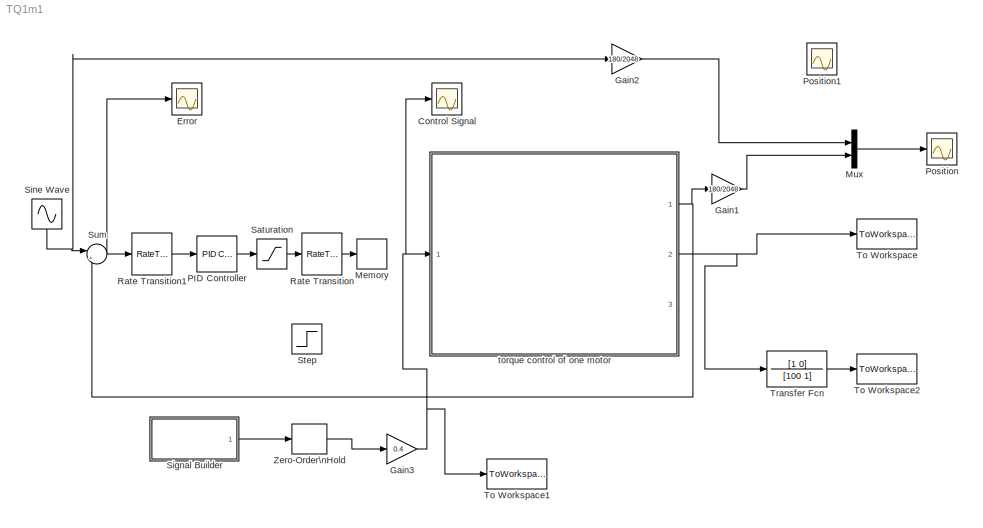
MODEL TQ1m1
KIND model
BLOCK [Scope] Control Signal
  DataFormat = StructureWithTime
  ExtModeUploadOption = log
  Floating = off
  NumInputPorts = 1
  Ports = [1]
  SID = 55
  SampleTime = 0
  SaveName = ScopeData7
  ShowLegends = off
  YMax = 0.4
  YMin = 0.4
  ZoomMode = yonly
BLOCK [Scope] Error
  DataFormat = StructureWithTime
  Floating = off
  NumInputPorts = 1
  Ports = [1]
  SID = 54
  SampleTime = 0
  SaveName = ScopeData6
  ShowLegends = off
  YMax = 2.8617
  YMin = 2.86
  ZoomMode = yonly
BLOCK [Gain] Gain1
  Gain = 180/2048
  OutDataTypeStr = Inherit: Inherit via internal rule
  ParamDataTypeStr = Inherit: Inherit via internal rule
  SID = 81
  SaturateOnIntegerOverflow = off
BLOCK [Gain] Gain2
  Gain = 180/2048
  OutDataTypeStr = Inherit: Inherit via internal rule
  ParamDataTypeStr = Inherit: Inherit via internal rule
  SID = 80
  SaturateOnIntegerOverflow = off
BLOCK [Gain] Gain3
  Gain = 0.4
  OutDataTypeStr = Inherit: Inherit via internal rule
  ParamDataTypeStr = Inherit: Inherit via internal rule
  SID = 93
  SaturateOnIntegerOverflow = off
BLOCK [Memory] Memory
  SID = 104
BLOCK [Mux] Mux
  DisplayOption = bar
  Inputs = 2
  Ports = [2, 1]
  SID = 51
BLOCK [Reference] PID Controller  REF=simulink/Continuous/PID Controller
  AntiWindupMode = none
  Controller = PID
  D = 0.00005
  DOutDataTypeStr = Inherit: Inherit via internal rule
  DOutMax = []
  DOutMin = []
  DParamDataTypeStr = Inherit: Inherit via internal rule
  DParamMax = []
  DParamMin = []
  ExternalReset = none
  FilterContinuousStateAttributes = ''
  FilterMethod = Forward Euler
  FilterOutDataTypeStr = Inherit: Inherit via internal rule
  FilterOutMax = []
  FilterOutMin = []
  FilterRTWStateStorageClass = Auto
  FilterStateMustResolveToSignalObject = off
  Form = Parallel
  I = 0.01
  IOutDataTypeStr = Inherit: Inherit via internal rule
  IOutMax = []
  IOutMin = []
  IParamDataTypeStr = Inherit: Inherit via internal rule
  IParamMax = []
  IParamMin = []
  IgnoreLimit = off
  InitialConditionForFilter = 0
  InitialConditionForIntegrator = 0
  InitialConditionSource = internal
  IntegratorContinuousStateAttributes = ''
  IntegratorMethod = Forward Euler
  IntegratorOutDataTypeStr = Inherit: Inherit via internal rule
  IntegratorOutMax = []
  IntegratorOutMin = []
  IntegratorRTWStateStorageClass = Auto
  IntegratorStateMustResolveToSignalObject = off
  Kb = 1
  KbOutDataTypeStr = Inherit: Inherit via internal rule
  KbOutMax = []
  KbOutMin = []
  KbParamDataTypeStr = Inherit: Inherit via internal rule
  KbParamMax = []
  KbParamMin = []
  Kt = 1
  KtOutDataTypeStr = Inherit: Inherit via internal rule
  KtOutMax = []
  KtOutMin = []
  KtParamDataTypeStr = Inherit: Inherit via internal rule
  KtParamMax = []
  KtParamMin = []
  LimitOutput = off
  LinearizeAsGain = on
  LockScale = off
  LowerSaturationLimit = -inf
  N = 100
  NOutDataTypeStr = Inherit: Inherit via internal rule
  NOutMax = []
  NOutMin = []
  NParamDataTypeStr = Inherit: Inherit via internal rule
  NParamMax = []
  NParamMin = []
  P = 0.002
  POutDataTypeStr = Inherit: Inherit via internal rule
  POutMax = []
  POutMin = []
  PParamDataTypeStr = Inherit: Inherit via internal rule
  PParamMax = []
  PParamMin = []
  Ports = [1, 1]
  RndMeth = Floor
  SID = 105
  SampleTime = 0.01
  SaturateOnIntegerOverflow = off
  SaturationOutDataTypeStr = Inherit: Same as input
  SaturationOutMax = []
  SaturationOutMin = []
  SourceBlock = simulink/Continuous/PID Controller
  SourceType = PID 1dof
  SumAccumDataTypeStr = Inherit: Inherit via internal rule
  SumDAccumDataTypeStr = Inherit: Inherit via internal rule
  SumDOutDataTypeStr = Inherit: Inherit via internal rule
  SumDOutMax = []
  SumDOutMin = []
  SumI1AccumDataTypeStr = Inherit: Inherit via internal rule
  SumI1OutDataTypeStr = Inherit: Inherit via internal rule
  SumI1OutMax = []
  SumI1OutMin = []
  SumI2AccumDataTypeStr = Inherit: Inherit via internal rule
  SumI2OutDataTypeStr = Inherit: Inherit via internal rule
  SumI2OutMax = []
  SumI2OutMin = []
  SumI3AccumDataTypeStr = Inherit: Inherit via internal rule
  SumI3OutDataTypeStr = Inherit: Inherit via internal rule
  SumI3OutMax = []
  SumI3OutMin = []
  SumOutDataTypeStr = Inherit: Inherit via internal rule
  SumOutMax = []
  SumOutMin = []
  TimeDomain = Discrete-time
  TrackingMode = off
  UpperSaturationLimit = inf
  ZeroCross = on
BLOCK [Scope] Position
  DataFormat = StructureWithTime
  ExtModeUploadOption = log
  Floating = off
  NumInputPorts = 1
  Ports = [1]
  SID = 11
  SampleTime = 0
  SaveName = ScopeData1
  ShowLegends = off
  TimeRange = 10
  YMax = 210
  YMin = 0
  ZoomMode = yonly
BLOCK [Scope] Position1
  DataFormat = StructureWithTime
  Floating = off
  NumInputPorts = 1
  Ports = [1]
  SID = 94
  SampleTime = 0
  SaveName = ScopeData9
  ShowLegends = off
  TimeRange = 10
  YMax = 375
  YMin = 0
  ZoomMode = yonly
BLOCK [RateTransition] Rate Transition
  SID = 106
BLOCK [RateTransition] Rate Transition1
  OutPortSampleTime = 0.01
  SID = 107
BLOCK [Saturate] Saturation
  InputPortMap = u0
  LowerLimit = -6
  Ports = [1, 1]
  SID = 108
  UpperLimit = 6
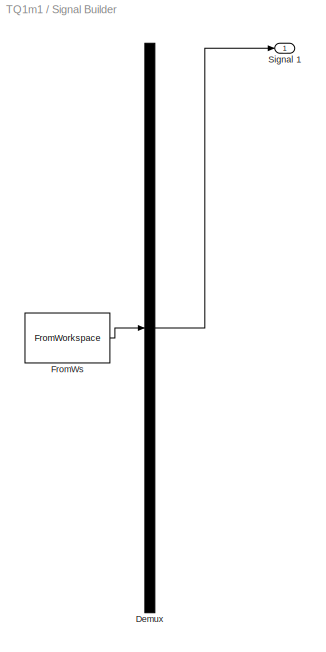
BLOCK [SubSystem] Signal Builder
  ClipboardFcn = sigbuilder_block('clipboard');
  CloseFcn = sigbuilder_block('close');
  ContinueFcn = sigbuilder_block('continue');
  CopyFcn = sigbuilder_block('copy');
  DeleteFcn = sigbuilder_block('delete');
  FunctionWithSeparateData = off
  LoadFcn = sigbuilder_block('load');
  MaskHideContents = on
  MinAlgLoopOccurrences = off
  ModelCloseFcn = sigbuilder_block('modelClose');
  NameChangeFcn = sigbuilder_block('namechange');
  Opaque = off
  OpenFcn = sigbuilder_block('open',[403.5 199.5 550.5 395.25 ]);
  PauseFcn = sigbuilder_block('pause');
  Ports = [0, 1]
  PreSaveFcn = sigbuilder_block('preSave');
  PropExecContextOutsideSubsystem = off
  RTWSystemCode = Auto
  RequestExecContextInheritance = off
  SID = 91
  StartFcn = sigbuilder_block('start');
  StopFcn = sigbuilder_block('stop');
  Tag = STV Subsys
BLOCK [Demux] Signal Builder/Demux
  Outputs = 1
  Ports = [1, 1]
  SID = 91:1
  Tag = STV Demux
BLOCK [FromWorkspace] Signal Builder/FromWs
  SID = 91:2
  SampleTime = 0
  SigBuilderData = DataTag0
  Tag = STV FromWs
  VariableName = tuvar
  VnvData = DataTag1
  ZeroCross = on
BLOCK [Outport] Signal Builder/Signal 1
  IconDisplay = Port number
  SID = 91:3
  Tag = STV Outport
BLOCK [Sin] Sine Wave
  Amplitude = 1000
  Bias = 1500
  Frequency = 1.5
  Ports = [0, 1]
  SID = 69
BLOCK [Step] Step
  After = 0
  SID = 50
  Time = 0
BLOCK [Sum] Sum
  IconShape = round
  InputSameDT = off
  Inputs = |+-
  OutDataTypeStr = Inherit: Inherit via internal rule
  Ports = [2, 1]
  SID = 49
  SaturateOnIntegerOverflow = off
BLOCK [ToWorkspace] To Workspace
  MaxDataPoints = inf
  Ports = [1]
  SID = 95
  SampleTime = -1
  VariableName = vel_out
BLOCK [ToWorkspace] To Workspace1
  MaxDataPoints = inf
  Ports = [1]
  SID = 96
  SampleTime = -1
  VariableName = trq_in
BLOCK [ToWorkspace] To Workspace2
  MaxDataPoints = inf
  Ports = [1]
  SID = 102
  SampleTime = -1
  VariableName = Acc_out
BLOCK [TransferFcn] Transfer Fcn
  Denominator = [100 1]
  Numerator = [1 0]
  SID = 103
BLOCK [ZeroOrderHold] Zero-Order\nHold
  SID = 92
  SampleTime = 0.0025
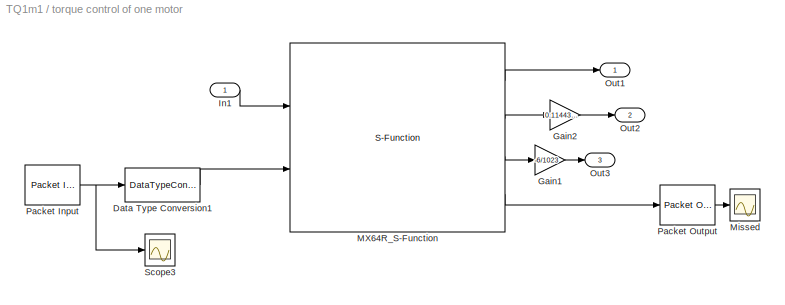
BLOCK [SubSystem] torque control of one motor
  FunctionWithSeparateData = off
  MaskHideContents = off
  MinAlgLoopOccurrences = off
  Opaque = off
  Ports = [1, 3]
  PropExecContextOutsideSubsystem = off
  RTWSystemCode = Auto
  RequestExecContextInheritance = off
  SID = 20
  TreatAsAtomicUnit = on
BLOCK [DataTypeConversion] torque control of one motor/Data Type Conversion1
  ConvertRealWorld = Stored Integer (SI)
  OutDataTypeStr = double
  RndMeth = Floor
  SID = 34
  SaturateOnIntegerOverflow = off
BLOCK [Gain] torque control of one motor/Gain1
  Gain = -6/1023
  OutDataTypeStr = Inherit: Inherit via internal rule
  ParamDataTypeStr = Inherit: Inherit via internal rule
  SID = 47
  SaturateOnIntegerOverflow = off
BLOCK [Gain] torque control of one motor/Gain2
  Gain = 0.11443333
  OutDataTypeStr = Inherit: Inherit via internal rule
  ParamDataTypeStr = Inherit: Inherit via internal rule
  SID = 57
  SaturateOnIntegerOverflow = off
BLOCK [Inport] torque control of one motor/In1
  IconDisplay = Port number
  SID = 22
BLOCK [S-Function] torque control of one motor/MX64R_S-Function
  EnableBusSupport = off
  FunctionName = MX64RRTW
  Parameters = p1
  Ports = [2, 4]
  SID = 9
BLOCK [Scope] torque control of one motor/Missed
  DataFormat = StructureWithTime
  ExtModeUploadOption = log
  Floating = off
  LimitDataPoints = off
  NumInputPorts = 1
  Ports = [1]
  SID = 84
  SampleTime = 0
  SaveName = ScopeData8
  SaveToWorkspace = on
  ShowLegends = off
BLOCK [Outport] torque control of one motor/Out1
  IconDisplay = Port number
  OutMax = [2*pi]
  OutMin = [0]
  SID = 23
BLOCK [Outport] torque control of one motor/Out2
  IconDisplay = Port number
  Port = 2
  SID = 24
BLOCK [Outport] torque control of one motor/Out3
  IconDisplay = Port number
  Port = 3
  SID = 39
BLOCK [Reference] torque control of one motor/Packet Input  REF=rtwinlib/Packet Input
  AttributesFormatString = Standard Devices\\nSerial Port [Ah]
  ByteOrder = 1
  DataTypes = '12*uint8'
  DrvAddress = 10
  DrvName = Standard_Devices/Serial_Port
  DrvOptions = [3000000 8 0 0 0 1 0 0]
  MaxMissedTicks = 1000
  PacketID = 1
  PacketSize = 12
  Ports = [0, 1]
  SID = 18
  SampleTime = -1
  ShowError = off
  ShowMissedTicks = off
  ShowReady = off
  ShowTimestamp = off
  SourceBlock = rtwinlib/Packet Input
  SourceType = RTWin Packet Input
  YieldWhenWaiting = off
BLOCK [Reference] torque control of one motor/Packet Output  REF=rtwinlib/Packet Output
  AttributesFormatString = Standard Devices\\nSerial Port [Ah]
  ByteOrder = 1
  DataTypes = '10*uint8'
  DrvAddress = 10
  DrvName = Standard_Devices/Serial_Port
  DrvOptions = [3000000 8 0 0 0 1 0 0]
  FinalValue = []
  InitialValue = []
  MaxMissedTicks = 1000
  PacketID = 1
  PacketSize = 10
  Ports = [1, 1]
  SID = 19
  SampleTime = -1
  ShowError = off
  ShowMissedTicks = on
  ShowReady = off
  SourceBlock = rtwinlib/Packet Output
  SourceType = RTWin Packet Output
  YieldWhenWaiting = off
BLOCK [Scope] torque control of one motor/Scope3
  DataFormat = StructureWithTime
  Floating = off
  NumInputPorts = 1
  Ports = [1]
  SID = 88
  SampleTime = 0
  ShowLegends = off
  TimeRange = 10
  YMax = 275
  YMin = 0
  ZoomMode = xonly
LINE Gain1:1 -> Mux:2
LINE Gain2:1 -> Mux:1
NET Gain3:1 -> Control Signal:1, To Workspace1:1, torque control of one motor:1
LINE Mux:1 -> Position:1
LINE PID Controller:1 -> Saturation:1
LINE Rate Transition1:1 -> PID Controller:1
LINE Rate Transition:1 -> Memory:1
LINE Saturation:1 -> Rate Transition:1
LINE Signal Builder/Demux:1 -> Signal Builder/Signal 1:1
LINE Signal Builder/FromWs:1 -> Signal Builder/Demux:1
LINE Signal Builder:1 -> Zero-Order\nHold:1
NET Sine Wave:1 -> Gain2:1, Sum:1
NET Sum:1 -> Error:1, Rate Transition1:1
LINE Transfer Fcn:1 -> To Workspace2:1
LINE Zero-Order\nHold:1 -> Gain3:1
LINE torque control of one motor/Data Type Conversion1:1 -> torque control of one motor/MX64R_S-Function:2
LINE torque control of one motor/Gain1:1 -> torque control of one motor/Out3:1
LINE torque control of one motor/Gain2:1 -> torque control of one motor/Out2:1
LINE torque control of one motor/In1:1 -> torque control of one motor/MX64R_S-Function:1
LINE torque control of one motor/MX64R_S-Function:1 -> torque control of one motor/Out1:1
LINE torque control of one motor/MX64R_S-Function:2 -> torque control of one motor/Gain2:1
LINE torque control of one motor/MX64R_S-Function:3 -> torque control of one motor/Gain1:1
LINE torque control of one motor/MX64R_S-Function:4 -> torque control of one motor/Packet Output:1
NET torque control of one motor/Packet Input:1 -> torque control of one motor/Data Type Conversion1:1, torque control of one motor/Scope3:1
LINE torque control of one motor/Packet Output:1 -> torque control of one motor/Missed:1
NET torque control of one motor:1 -> Gain1:1, Sum:2
NET torque control of one motor:2 -> To Workspace:1, Transfer Fcn:1
note: NET lines group one-source signal fan-out (src -> all destinations, sorted); 1:1 wires keep LINE
